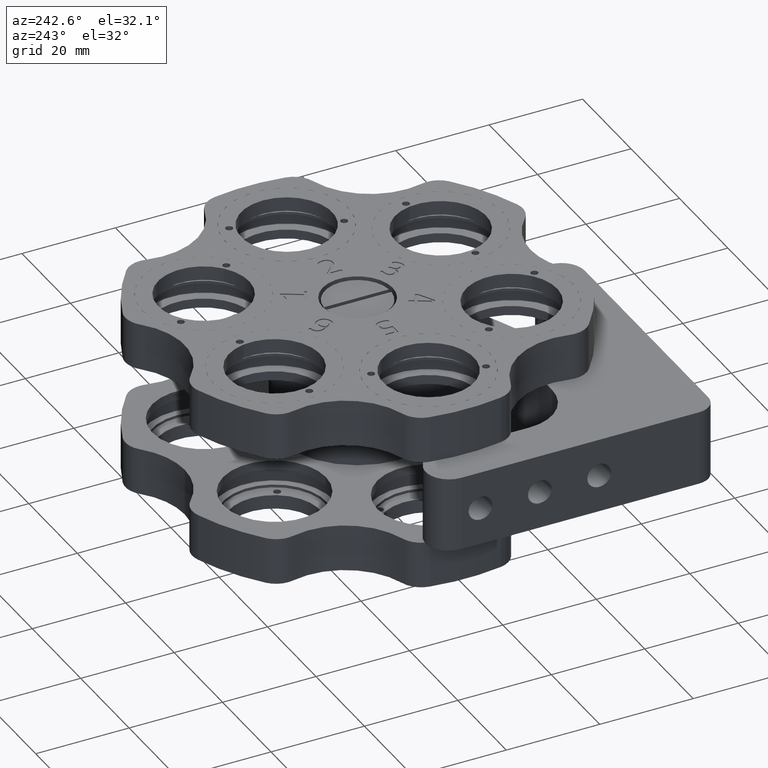
[diagram: clean part render]
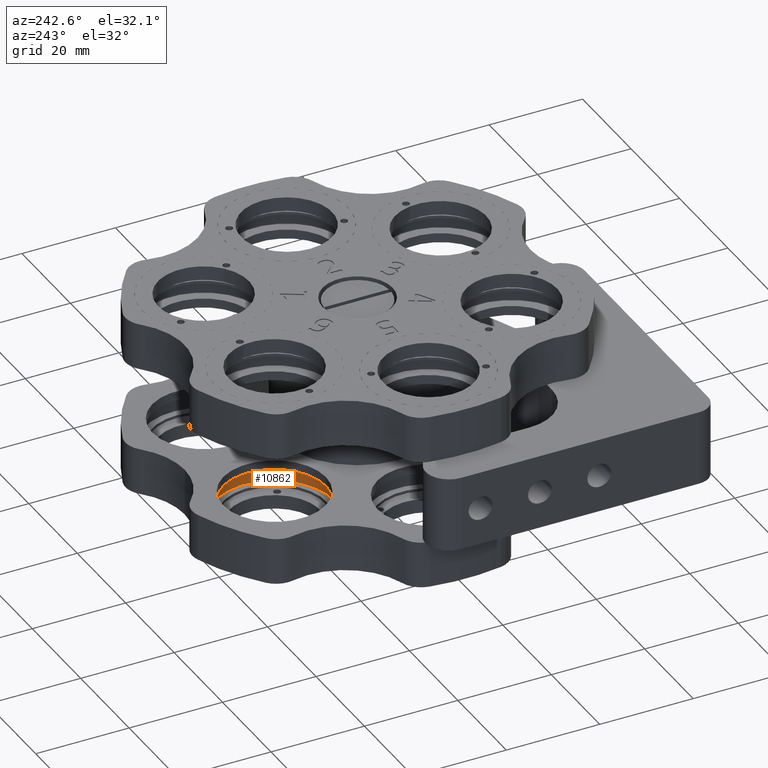
[diagram: same view with one face highlighted and labeled with its STEP entity id]
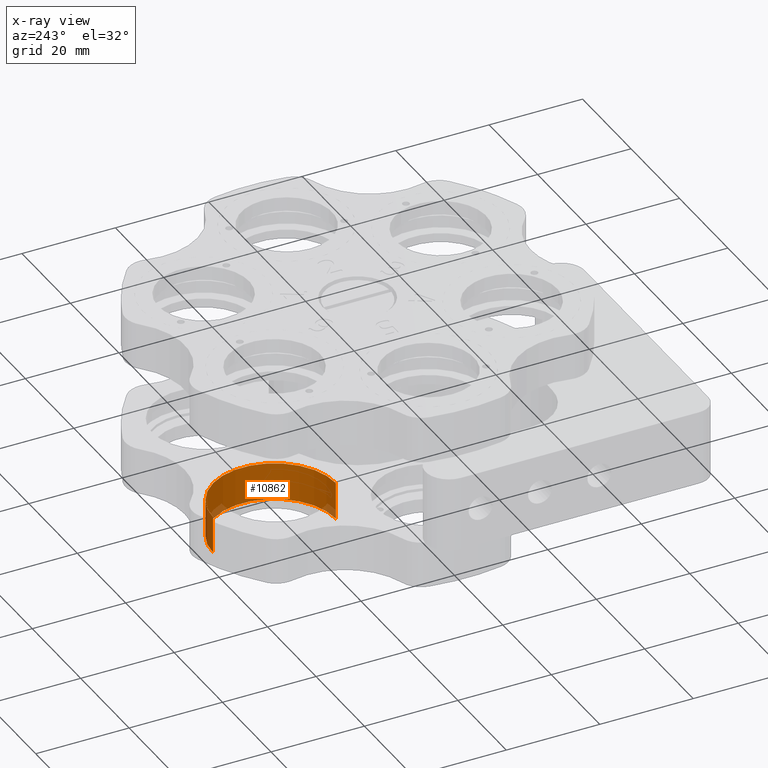
[diagram: x-ray of the same camera — body ghosted, the highlighted face saturated]
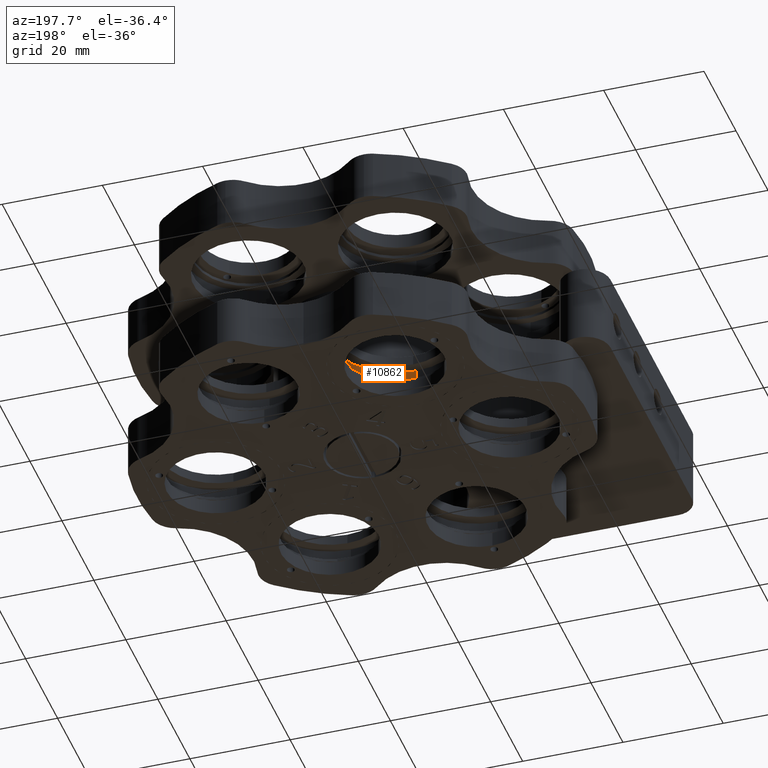
[diagram: same view with one face highlighted and labeled with its STEP entity id]
A machine part, auxiliary view. The second image highlights one B-rep face of the part: STEP entity #10862.
The next image is the same camera in x-ray: the body ghosted, the highlighted face saturated — about 4% of this face is hidden behind the body in this view.
A second angle (auxiliary view) of the same face is appended — the face is thin or edge-on in the first view.
In plain terms, the highlighted cylindrical surface (partial cylindrical patch) has radius 13.15 mm, axis along (-0, -0, -1).
Its self-contained STEP definition (entity closure, byte-faithful):
#1041 = CARTESIAN_POINT ( 'NONE',  ( -14.65314983203314000, 12.23000000000077300, -27.00000000000000000 ) ) ;
#1147 = EDGE_CURVE ( 'NONE', #12894, #2312, #2891, .T. ) ;
#2312 = VERTEX_POINT ( 'NONE', #1041 ) ;
#2367 = DIRECTION ( 'NONE',  ( -1.319181350552698900E-016, 1.000000000000000000, -2.638362701105397700E-016 ) ) ;
#2891 = CIRCLE ( 'NONE', #26456, 13.15000000000006100 ) ;
#2953 = CARTESIAN_POINT ( 'NONE',  ( -14.65314983203314000, 12.23000000000077300, -19.00000000000000400 ) ) ;
#5228 = DIRECTION ( 'NONE',  ( -4.201907058881557700E-017, -1.638974304573498600E-016, -1.000000000000000000 ) ) ;
#7545 = EDGE_CURVE ( 'NONE', #13479, #12894, #12344, .T. ) ;
#7973 = ORIENTED_EDGE ( 'NONE', *, *, #7545, .T. ) ;
#9052 = AXIS2_PLACEMENT_3D ( 'NONE', #21748, #5228, #21846 ) ;
#10284 = EDGE_CURVE ( 'NONE', #16576, #2312, #25263, .T. ) ;
#10302 = ORIENTED_EDGE ( 'NONE', *, *, #1147, .T. ) ;
#10862 = ADVANCED_FACE ( 'NONE', ( #19118 ), #11099, .F. ) ;
#11099 = CYLINDRICAL_SURFACE ( 'NONE', #9052, 13.15000000000006100 ) ;
#11740 = CARTESIAN_POINT ( 'NONE',  ( -14.65314983203313800, 38.53000000000083200, -27.00000000000000700 ) ) ;
#11871 = ORIENTED_EDGE ( 'NONE', *, *, #10284, .F. ) ;
#12344 = LINE ( 'NONE', #20461, #21983 ) ;
#12355 = DIRECTION ( 'NONE',  ( -4.201907058881557700E-017, -1.638974304573498600E-016, -1.000000000000000000 ) ) ;
#12373 = ORIENTED_EDGE ( 'NONE', *, *, #26613, .F. ) ;
#12894 = VERTEX_POINT ( 'NONE', #11740 ) ;
#13479 = VERTEX_POINT ( 'NONE', #25676 ) ;
#14233 = CARTESIAN_POINT ( 'NONE',  ( -14.65314983203313700, 25.38000000000077300, -27.00000000000000400 ) ) ;
#15635 = VECTOR ( 'NONE', #18156, 1000.000000000000000 ) ;
#16576 = VERTEX_POINT ( 'NONE', #2953 ) ;
#18107 = EDGE_LOOP ( 'NONE', ( #11871, #12373, #7973, #10302 ) ) ;
#18156 = DIRECTION ( 'NONE',  ( -4.201907058881557700E-017, -1.638974304573498600E-016, -1.000000000000000000 ) ) ;
#18496 = CARTESIAN_POINT ( 'NONE',  ( -14.65314983203314000, 12.23000000000071300, -19.00000000000000400 ) ) ;
#18977 = CIRCLE ( 'NONE', #25705, 13.15000000000006100 ) ;
#19118 = FACE_OUTER_BOUND ( 'NONE', #18107, .T. ) ;
#20461 = CARTESIAN_POINT ( 'NONE',  ( -14.65314983203314500, 38.53000000000083200, -19.00000000000001100 ) ) ;
#20578 = DIRECTION ( 'NONE',  ( -4.201907058881557700E-017, -1.638974304573498600E-016, -1.000000000000000000 ) ) ;
#20848 = CARTESIAN_POINT ( 'NONE',  ( -14.65314983203314400, 25.38000000000077300, -19.00000000000000700 ) ) ;
#21748 = CARTESIAN_POINT ( 'NONE',  ( -14.65314983203314400, 25.38000000000077300, -19.00000000000000700 ) ) ;
#21846 = DIRECTION ( 'NONE',  ( -1.319181350552698900E-016, 1.000000000000000000, -2.638362701105397700E-016 ) ) ;
#21983 = VECTOR ( 'NONE', #24272, 1000.000000000000000 ) ;
#24272 = DIRECTION ( 'NONE',  ( -4.201907058881557700E-017, -1.638974304573498600E-016, -1.000000000000000000 ) ) ;
#25263 = LINE ( 'NONE', #18496, #15635 ) ;
#25676 = CARTESIAN_POINT ( 'NONE',  ( -14.65314983203314500, 38.53000000000083200, -19.00000000000001100 ) ) ;
#25705 = AXIS2_PLACEMENT_3D ( 'NONE', #20848, #20578, #2367 ) ;
#26456 = AXIS2_PLACEMENT_3D ( 'NONE', #14233, #12355, #26610 ) ;
#26610 = DIRECTION ( 'NONE',  ( -1.319181350552698900E-016, 1.000000000000000000, -2.638362701105397700E-016 ) ) ;
#26613 = EDGE_CURVE ( 'NONE', #13479, #16576, #18977, .T. ) ;